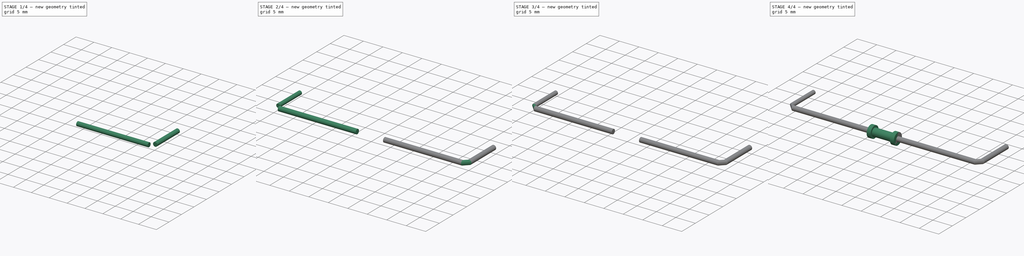
[diagram: build sequence overview — one tinted view per stage of 4, left to right]
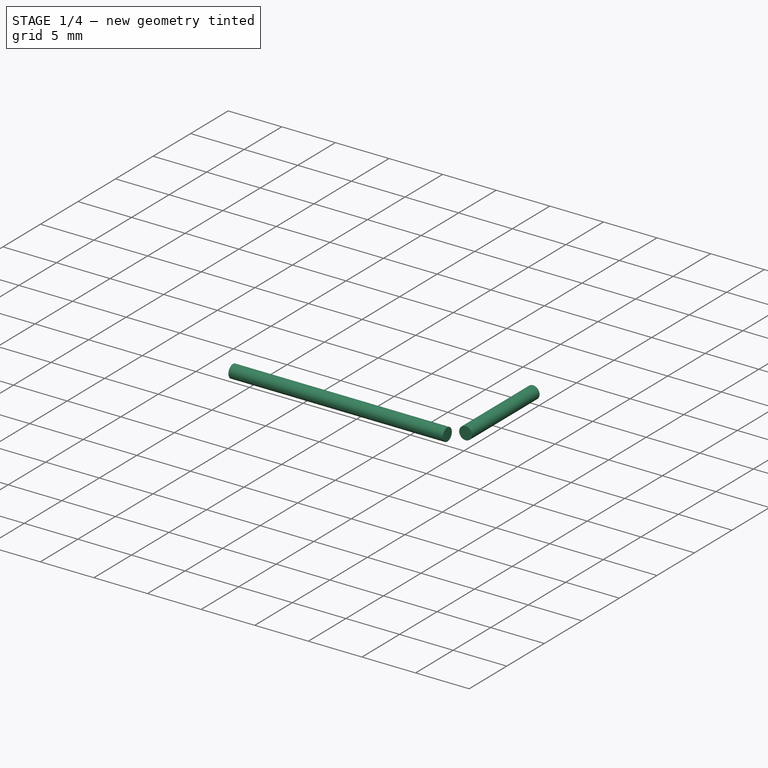
[diagram: stage 1 of 4 — iso view after this stage's code; geometry added in this stage tinted green]
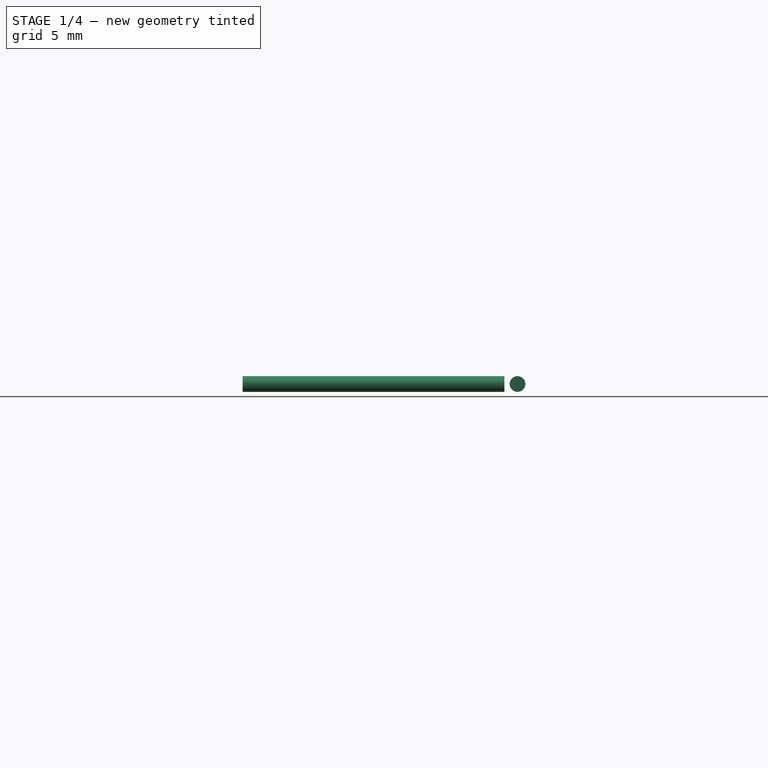
[diagram: stage 1 of 4 — front view after this stage's code; geometry added in this stage tinted green]
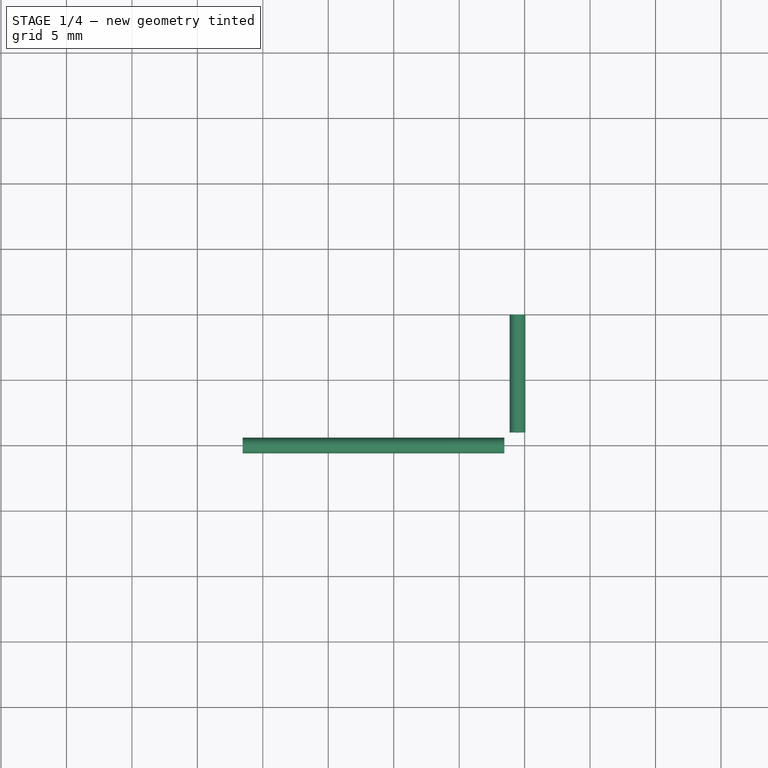
[diagram: stage 1 of 4 — top view after this stage's code; geometry added in this stage tinted green]
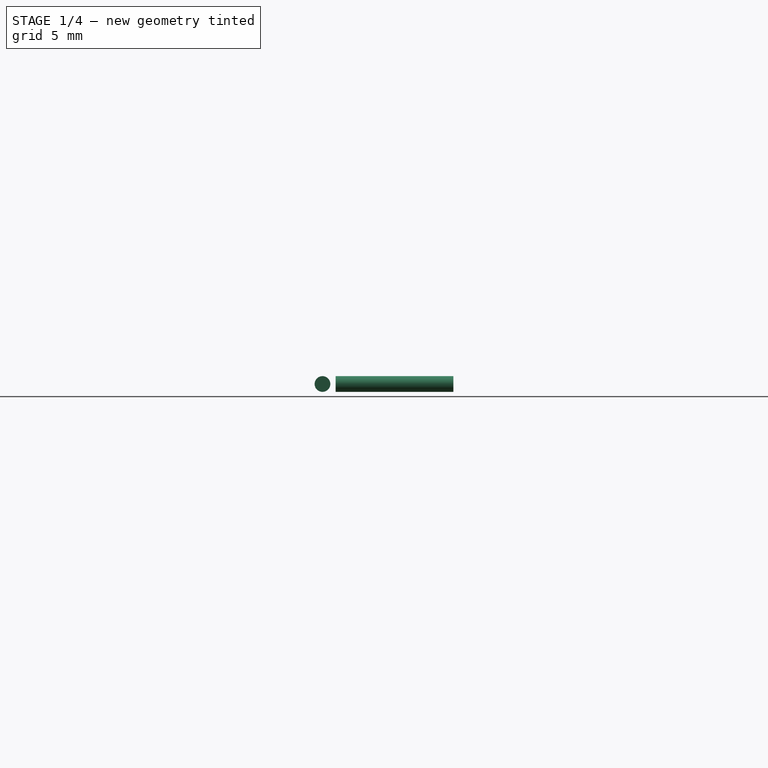
[diagram: stage 1 of 4 — right view after this stage's code; geometry added in this stage tinted green]
FCSTD DOCUMENT  (FreeCAD 1.0R39319 (Git))
Label: Resistor(МЛТ-0,25)
License: All rights reserved
LicenseURL: https://en.wikipedia.org/wiki/All_rights_reserved
objects: PartDesign::AdditiveCylinder×6, PartDesign::Body×4, PartDesign::AdditiveLoft×3, Sketcher::SketchObject×1, PartDesign::Revolution×1
note: 36 computed .brp shape members not serialized (recipe doc carries the construction recipe); baked Part::Feature solids carry a one-line shape summary decoded from their .brp

FEATURE [PartDesign::Body] Body002  label="Тіло002"
  AllowCompound = false
  Group = -> [Cylinder002,Cylinder003,AdditiveLoft001]
  Origin = -> Origin002
  Tip = -> AdditiveLoft001
FEATURE [PartDesign::AdditiveCylinder] Cylinder004
  Angle = 360
  AttacherType = Attacher::AttachEngine3D
  AttachmentSupport = -> [Revolution]
  FirstAngle = 0
  Height = 20
  MapMode = 5
  Placement = pos=(3.45655,0,0) rot=(0.707107,0,0.707107;3.14159rad)
  Radius = 0.6
  Refine = true
  SecondAngle = 0
  Suppressed = false
FEATURE [PartDesign::AdditiveCylinder] Cylinder005
  Angle = 360
  AttacherType = Attacher::AttachEngine3D
  AttachmentOffset = pos=(-0.6,1,1) rot=(0,0,1;0rad)
  AttachmentSupport = -> [Cylinder004]
  BaseFeature = -> Cylinder004
  FirstAngle = 0
  Height = 9
  MapMode = 8
  Placement = pos=(24.4566,1,-4.4e-15) rot=(0.57735,0.57735,0.57735;4.18879rad)
  Radius = 0.6
  Refine = true
  SecondAngle = 0
  Suppressed = false
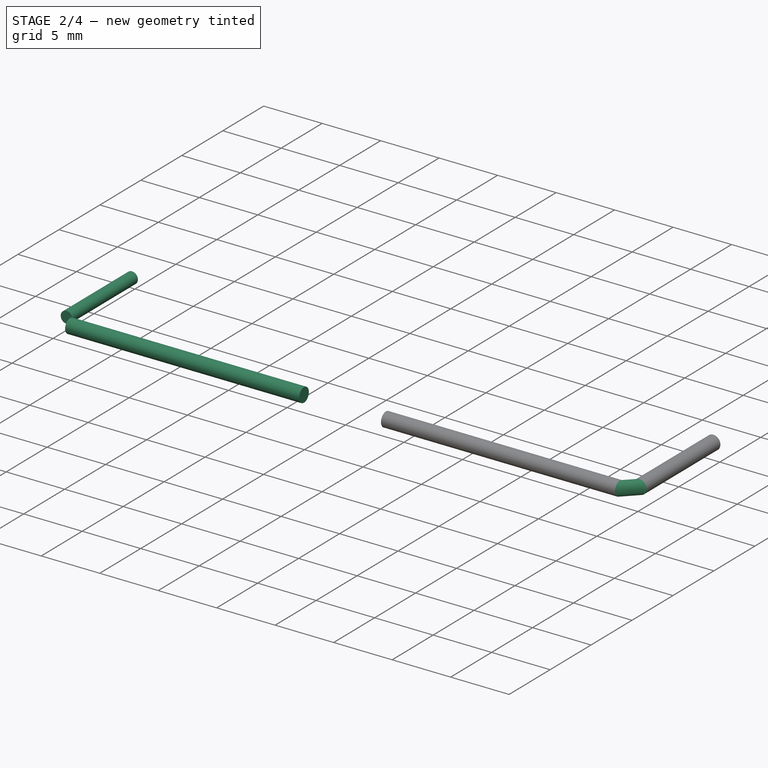
[diagram: stage 2 of 4 — iso view after this stage's code; geometry added in this stage tinted green]
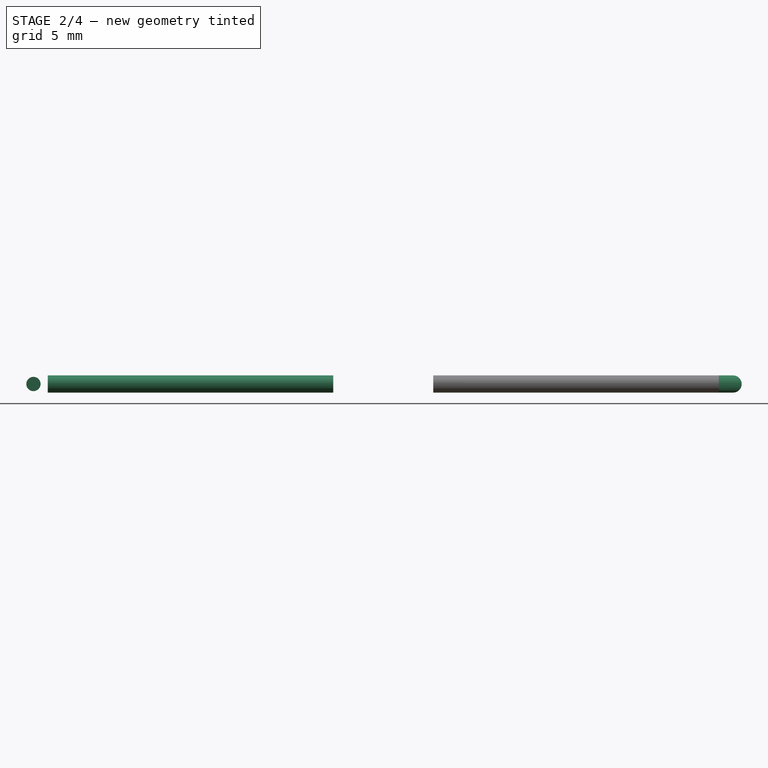
[diagram: stage 2 of 4 — front view after this stage's code; geometry added in this stage tinted green]
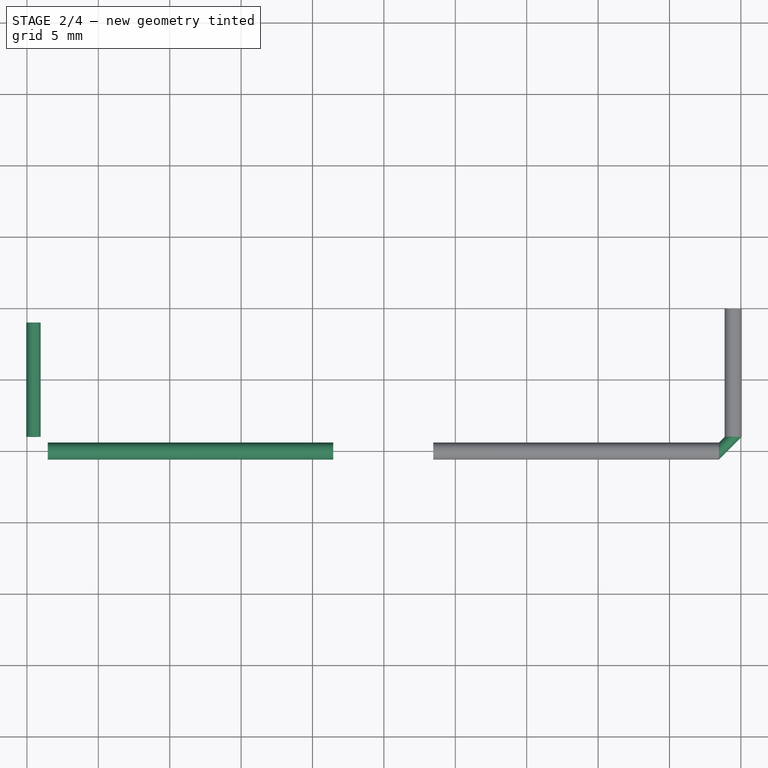
[diagram: stage 2 of 4 — top view after this stage's code; geometry added in this stage tinted green]
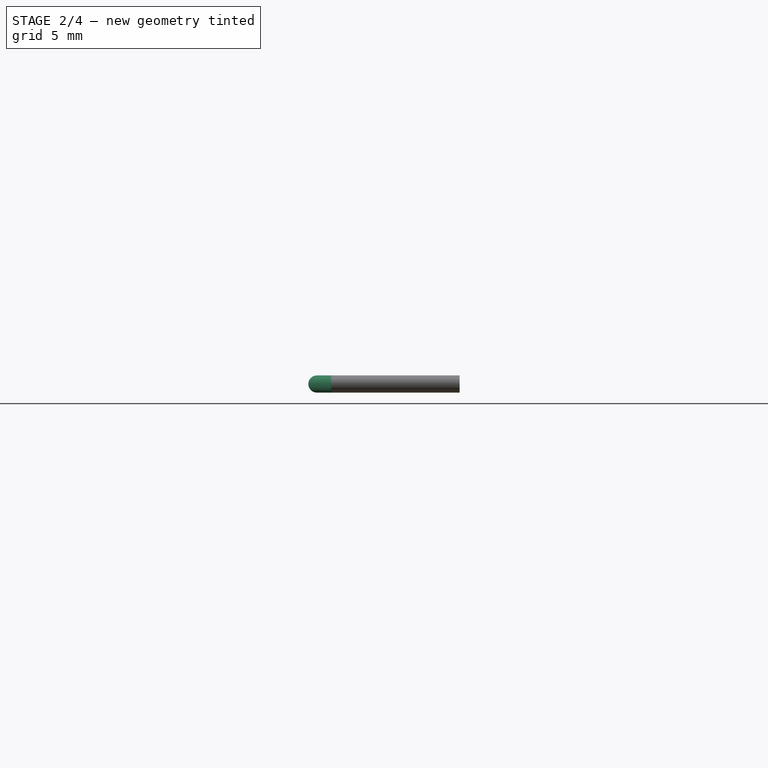
[diagram: stage 2 of 4 — right view after this stage's code; geometry added in this stage tinted green]
FEATURE [PartDesign::Body] Body001  label="Тіло001"
  AllowCompound = false
  Group = -> [Cylinder,Cylinder001,AdditiveLoft]
  Origin = -> Origin001
  Tip = -> AdditiveLoft
FEATURE [PartDesign::AdditiveCylinder] Cylinder002
  Angle = 360
  AttacherType = Attacher::AttachEngine3D
  AttachmentSupport = -> [Revolution]
  FirstAngle = 0
  Height = 20
  MapMode = 5
  Placement = pos=(-3.54345,0,0) rot=(0.707107,0,-0.707107;3.14159rad)
  Radius = 0.6
  Refine = true
  SecondAngle = 0
  Suppressed = false
FEATURE [PartDesign::AdditiveCylinder] Cylinder003
  Angle = 360
  AttacherType = Attacher::AttachEngine3D
  AttachmentOffset = pos=(-0.6,1,1) rot=(0,0,1;0rad)
  AttachmentSupport = -> [Cylinder002]
  BaseFeature = -> Cylinder002
  FirstAngle = 0
  Height = 8
  MapMode = 8
  Placement = pos=(-24.5434,1,-4.4e-15) rot=(0.57735,-0.57735,-0.57735;4.18879rad)
  Radius = 0.5
  Refine = true
  SecondAngle = 0
  Suppressed = false
FEATURE [PartDesign::AdditiveLoft] AdditiveLoft002
  BaseFeature = -> Cylinder005
  Closed = false
  Placement = pos=(24.4566,1,-4.4e-15) rot=(0.57735,0.57735,0.57735;4.18879rad)
  Profile = -> Cylinder005 [Edge5]
  Refine = true
  Ruled = false
  Sections = -> [Cylinder005]
  Suppressed = false
FEATURE [PartDesign::Body] Body003  label="Тіло003"
  AllowCompound = false
  Group = -> [Cylinder004,Cylinder005,AdditiveLoft002]
  Origin = -> Origin003
  Tip = -> AdditiveLoft002
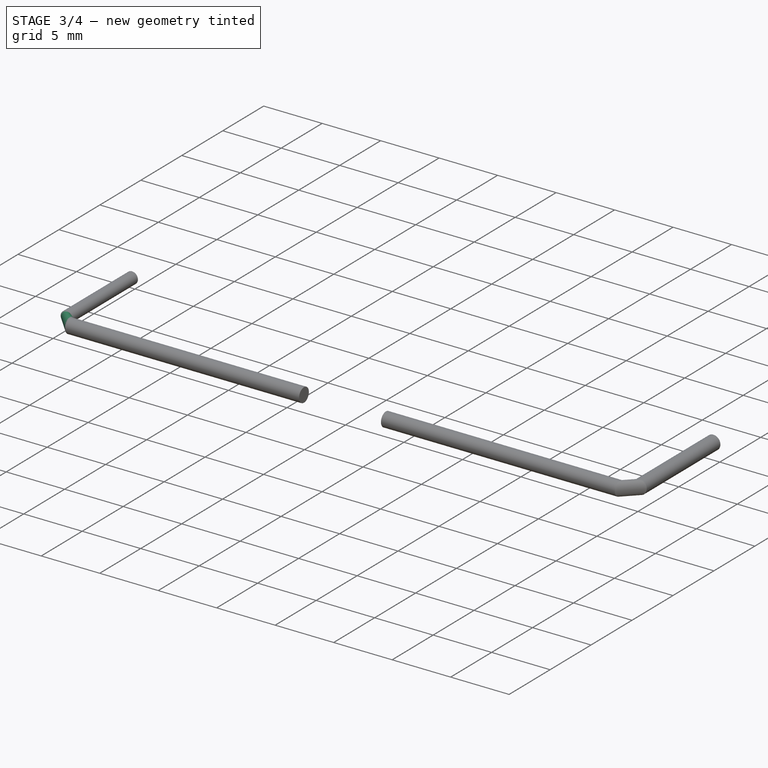
[diagram: stage 3 of 4 — iso view after this stage's code; geometry added in this stage tinted green]
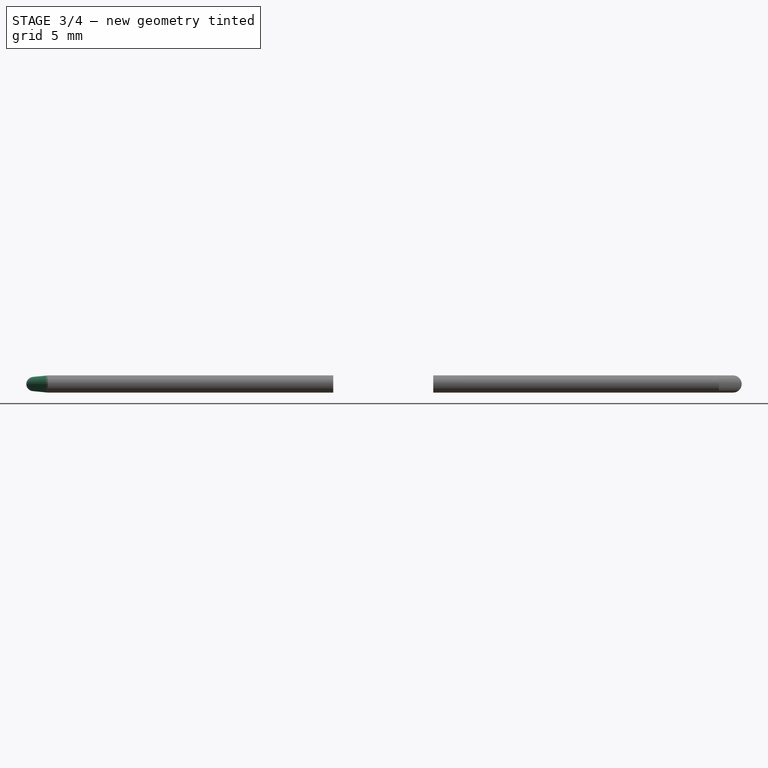
[diagram: stage 3 of 4 — front view after this stage's code; geometry added in this stage tinted green]
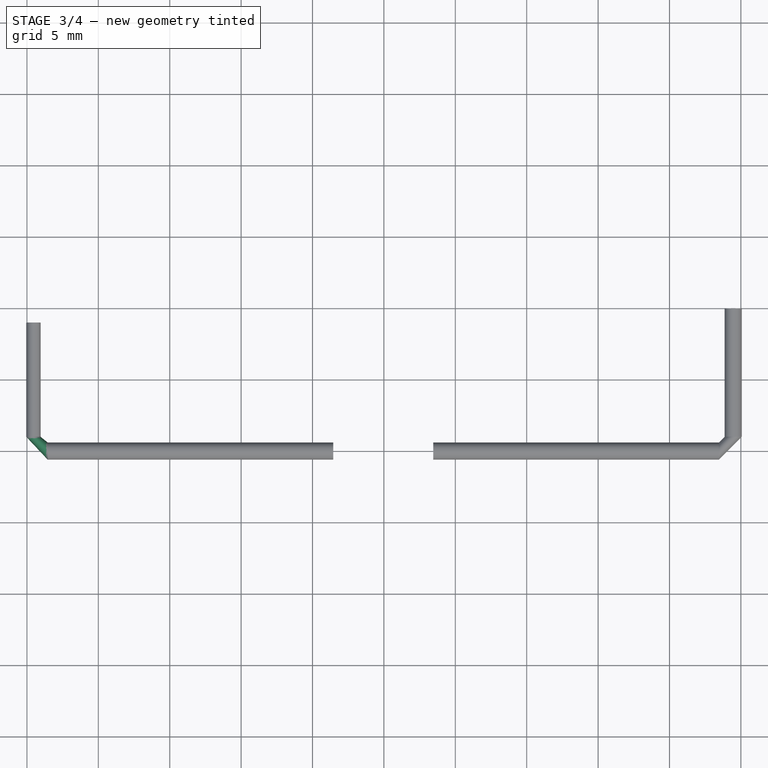
[diagram: stage 3 of 4 — top view after this stage's code; geometry added in this stage tinted green]
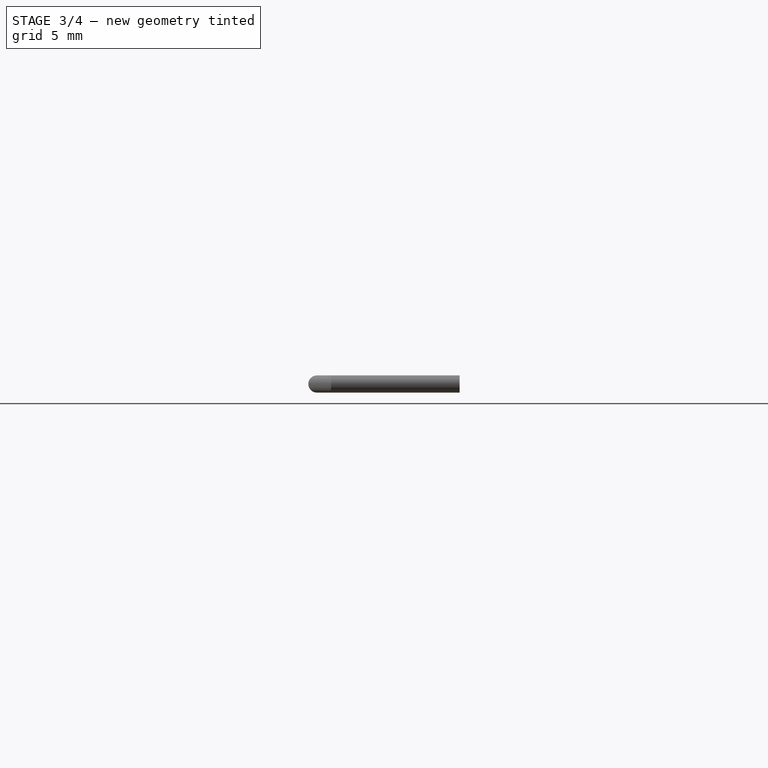
[diagram: stage 3 of 4 — right view after this stage's code; geometry added in this stage tinted green]
FEATURE [PartDesign::Body] Body  label="Тіло"
  AllowCompound = false
  Group = -> [Sketch,Revolution]
  Origin = -> Origin
  Tip = -> Revolution
FEATURE [PartDesign::AdditiveCylinder] Cylinder
  Angle = 360
  AttacherType = Attacher::AttachEngine3D
  AttachmentSupport = -> [Revolution]
  FirstAngle = 0
  Height = 20
  MapMode = 5
  Placement = pos=(3.45655,0,0) rot=(0.707107,0,0.707107;3.14159rad)
  Radius = 0.6
  Refine = true
  SecondAngle = 0
  Suppressed = false
FEATURE [PartDesign::AdditiveCylinder] Cylinder001
  Angle = 360
  AttacherType = Attacher::AttachEngine3D
  AttachmentOffset = pos=(-0.6,1,1) rot=(0,0,1;0rad)
  AttachmentSupport = -> [Cylinder]
  BaseFeature = -> Cylinder
  FirstAngle = 0
  Height = 8
  MapMode = 8
  Placement = pos=(24.4566,1,-4.4e-15) rot=(0.57735,0.57735,0.57735;4.18879rad)
  Radius = 0.6
  Refine = true
  SecondAngle = 0
  Suppressed = false
FEATURE [PartDesign::AdditiveLoft] AdditiveLoft001
  BaseFeature = -> Cylinder003
  Closed = false
  Placement = pos=(-24.5434,1,-4.4e-15) rot=(0.57735,-0.57735,-0.57735;4.18879rad)
  Profile = -> Cylinder003 [Face3]
  Refine = true
  Ruled = false
  Sections = -> [Cylinder003]
  Suppressed = false
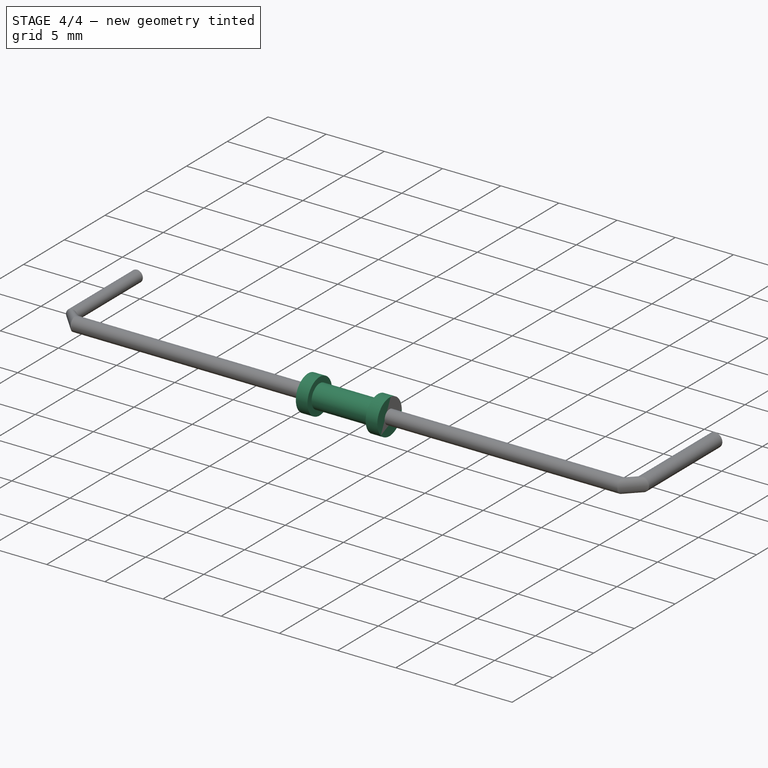
[diagram: stage 4 of 4 — iso view after this stage's code; geometry added in this stage tinted green]
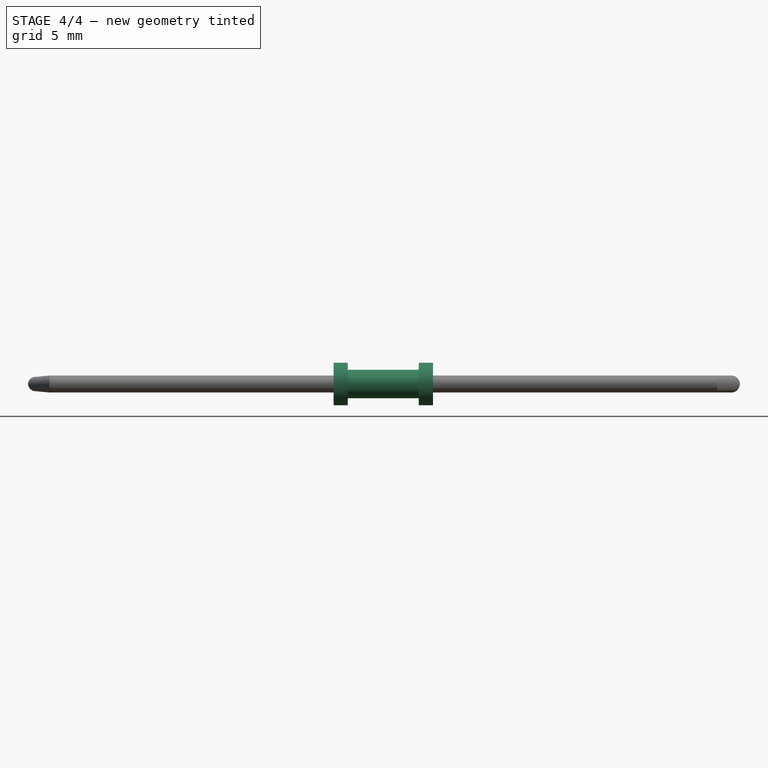
[diagram: stage 4 of 4 — front view after this stage's code; geometry added in this stage tinted green]
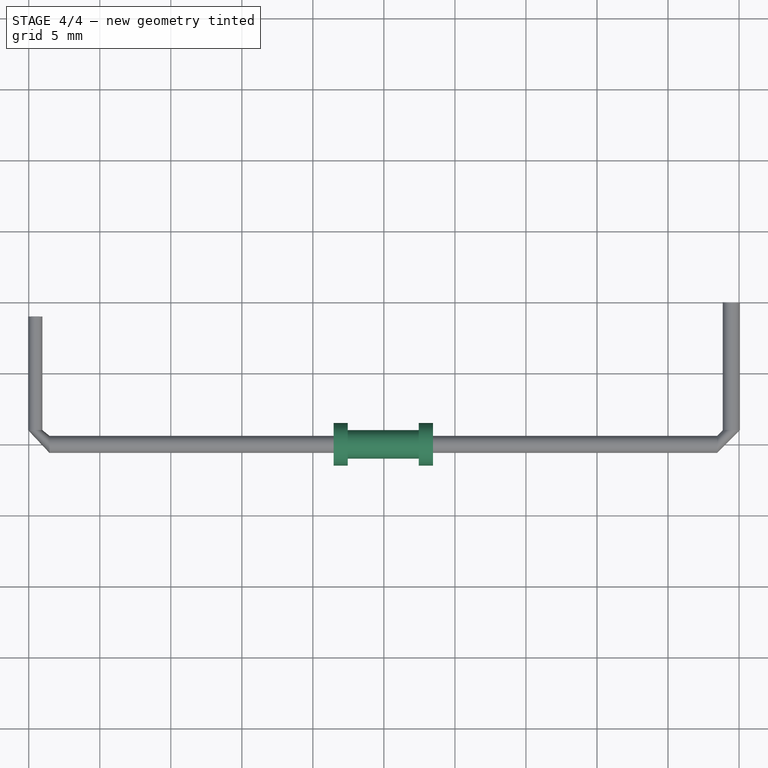
[diagram: stage 4 of 4 — top view after this stage's code; geometry added in this stage tinted green]
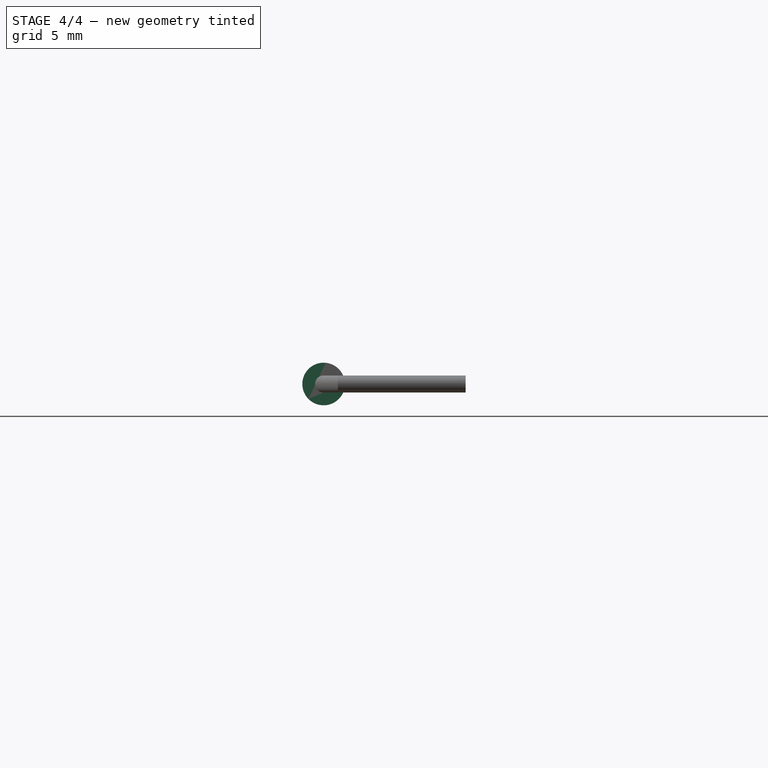
[diagram: stage 4 of 4 — right view after this stage's code; geometry added in this stage tinted green]
FEATURE [Sketcher::SketchObject] Sketch
  ArcFitTolerance = 1e-06
  AttachmentSupport = -> [XZ_Plane]
  FullyConstrained = false
  MakeInternals = false
  MapMode = 5
  Placement = pos=(0,0,0) rot=(1,0,0;1.5708rad)
  sketch-geometry (13):
    g0: LineSegment [constr] StartX=-3.54345 StartY=0 StartZ=0 EndX=3.45655 EndY=0 EndZ=0
    g1: LineSegment StartX=3.45655 StartY=0 StartZ=0 EndX=3.45655 EndY=1.5 EndZ=0
    g2: LineSegment StartX=3.45655 StartY=1.5 StartZ=0 EndX=2.45655 EndY=1.5 EndZ=0
    g3: LineSegment StartX=2.45655 StartY=1.5 StartZ=0 EndX=2.45655 EndY=0 EndZ=0
    g4: LineSegment StartX=2.45655 StartY=0 StartZ=0 EndX=3.45655 EndY=0 EndZ=0
    g5: LineSegment StartX=2.45655 StartY=0 StartZ=0 EndX=2.45655 EndY=1 EndZ=0
    g6: LineSegment StartX=2.45655 StartY=1 StartZ=0 EndX=-2.54345 EndY=1 EndZ=0
    g7: LineSegment StartX=-2.54345 StartY=1 StartZ=0 EndX=-2.54345 EndY=0 EndZ=0
    g8: LineSegment StartX=-2.54345 StartY=0 StartZ=0 EndX=2.45655 EndY=0 EndZ=0
    g9: LineSegment StartX=-2.54345 StartY=0 StartZ=0 EndX=-2.54345 EndY=1.5 EndZ=0
    g10: LineSegment StartX=-2.54345 StartY=1.5 StartZ=0 EndX=-3.54345 EndY=1.5 EndZ=0
    g11: LineSegment StartX=-3.54345 StartY=1.5 StartZ=0 EndX=-3.54345 EndY=0 EndZ=0
    g12: LineSegment StartX=-3.54345 StartY=0 StartZ=0 EndX=-2.54345 EndY=0 EndZ=0
  constraints (36):
    c: Distance(g0) = 7
    c: PointOnObject(g0,g-1)
    c: PointOnObject(g0,g-1)
    c: Coincident(g1,g2)
    c: Coincident(g2,g3)
    c: Coincident(g3,g4)
    c: Coincident(g4,g1)
    c: Vertical(g1)
    c: Vertical(g3)
    c: Horizontal(g2)
    c: Horizontal(g4)
    c: Distance(g1,g3) = 1
    c: Distance(g2,g4) = 1.5
    c: Coincident(g1,g0)
    c: Coincident(g5,g6)
    c: Coincident(g6,g7)
    c: Coincident(g7,g8)
    c: Coincident(g8,g5)
    c: Vertical(g5)
    c: Vertical(g7)
    c: Horizontal(g6)
    c: Horizontal(g8)
    c: Distance(g5,g7) = 5
    c: Distance(g6,g8) = 1
    c: Coincident(g5,g3)
    c: Coincident(g9,g10)
    c: Coincident(g10,g11)
    c: Coincident(g11,g12)
    c: Coincident(g12,g9)
    c: Vertical(g9)
    c: Vertical(g11)
    c: Horizontal(g10)
    c: Horizontal(g12)
    c: Distance(g9,g11) = 1
    c: Distance(g10,g12) = 1.5
    c: Coincident(g9,g7)
FEATURE [PartDesign::Revolution] Revolution
  Angle = 360
  Angle2 = 60
  Axis = (1,0,0)
  Base = (0,0,0)
  Placement = pos=(0,0,0) rot=(1,0,0;1.5708rad)
  Profile = -> Sketch
  ReferenceAxis = -> X_Axis
  Refine = true
  Suppressed = false
  Type = 0
FEATURE [PartDesign::AdditiveLoft] AdditiveLoft
  BaseFeature = -> Cylinder001
  Closed = false
  Placement = pos=(24.4566,1,-4.4e-15) rot=(0.57735,0.57735,0.57735;4.18879rad)
  Profile = -> Cylinder001 [Face3]
  Refine = true
  Ruled = false
  Sections = -> [Cylinder001]
  Suppressed = false
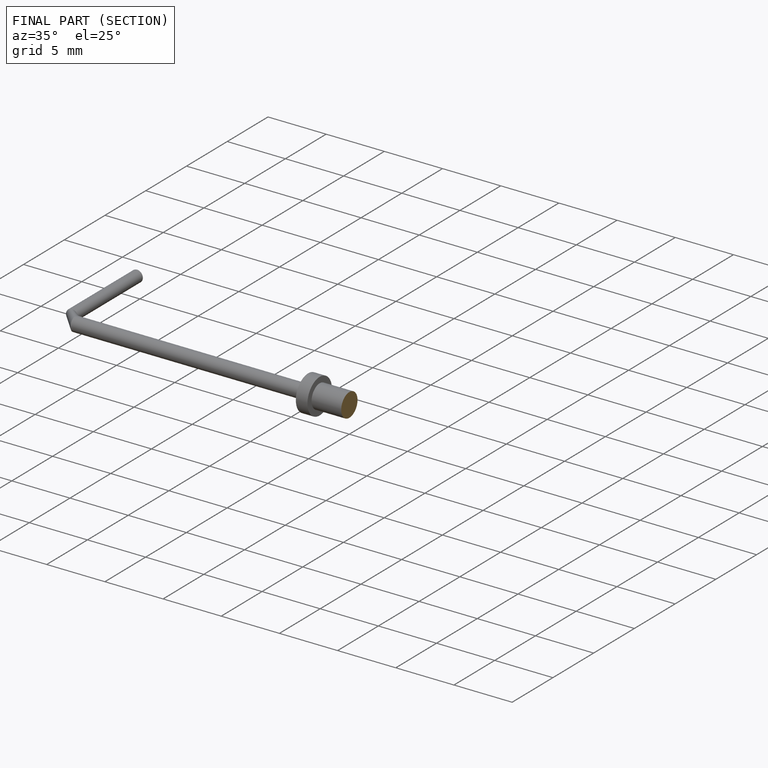
[diagram: finished part — half-section view (interior)]
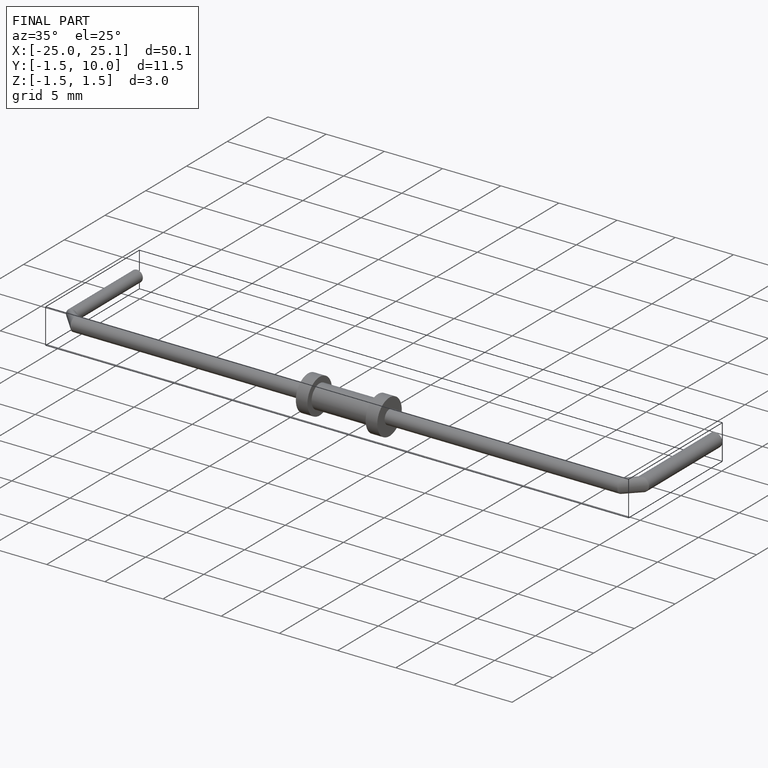
[diagram: finished part — iso view with bounding-box wireframe]
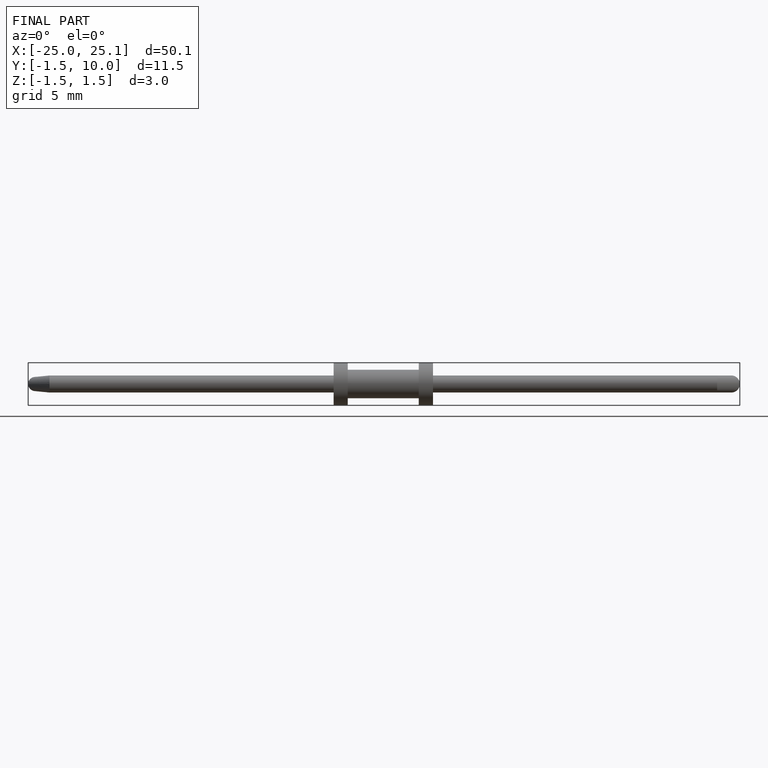
[diagram: finished part — front view with bounding-box wireframe]
